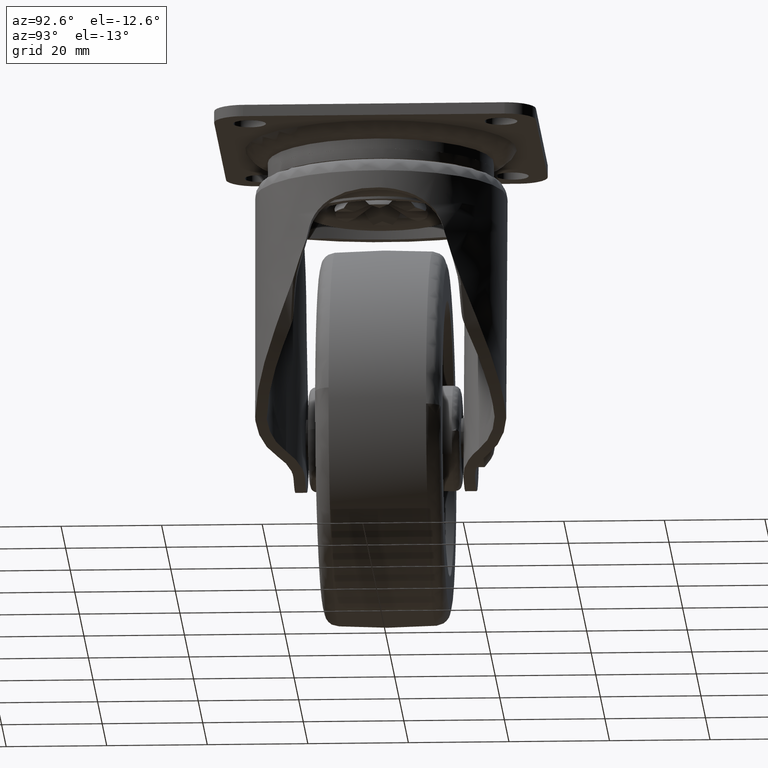
[diagram: clean part render]
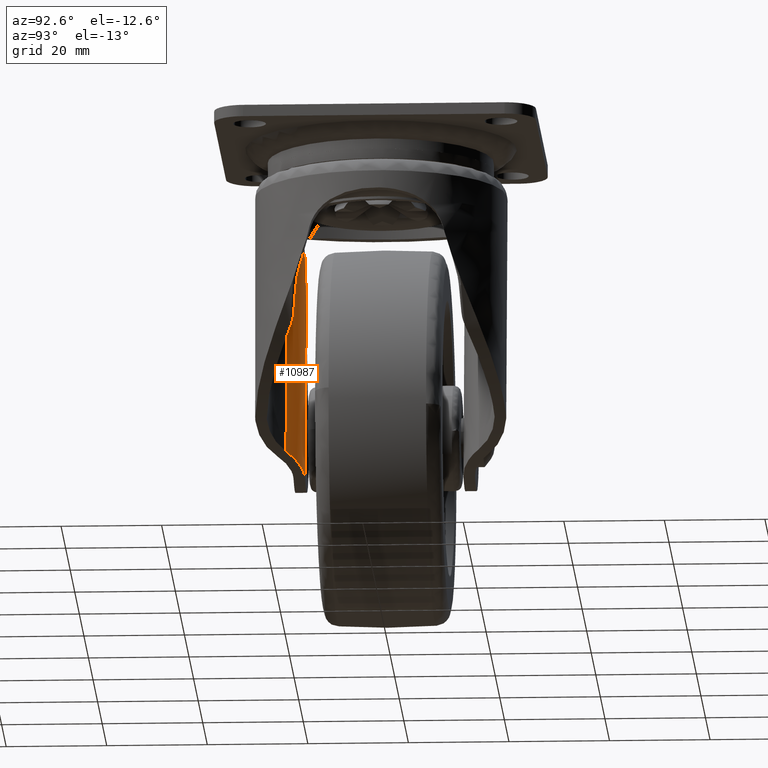
[diagram: same view with one face highlighted and labeled with its STEP entity id]
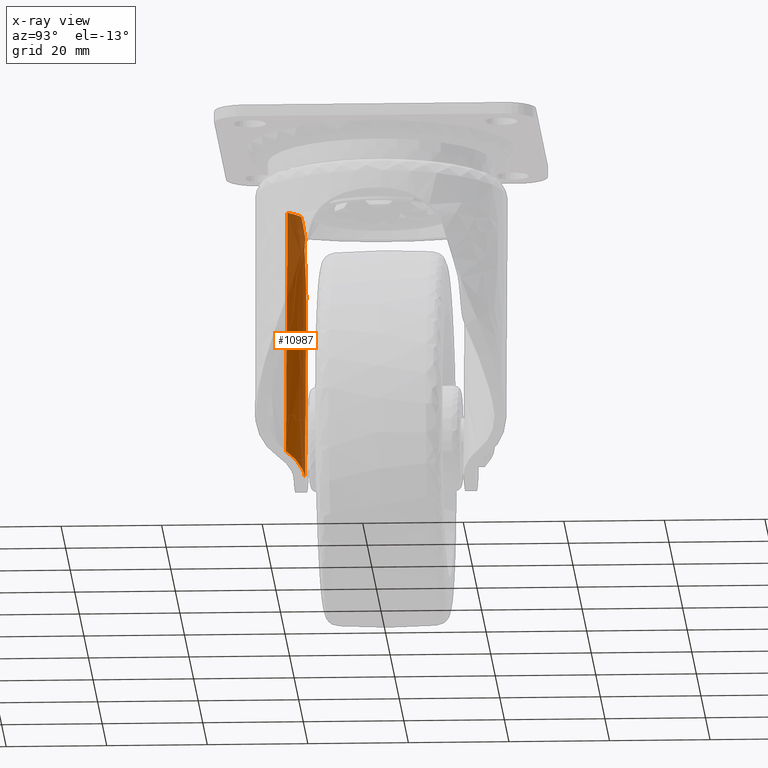
[diagram: x-ray of the same camera — body ghosted, the highlighted face saturated]
A machine part, auxiliary view. The second image highlights one B-rep face of the part: STEP entity #10987.
The next image is the same camera in x-ray: the body ghosted, the highlighted face saturated — about 29% of this face is hidden behind the body in this view.
In plain terms, the highlighted face is a freeform B-spline surface patch.
Its self-contained STEP definition (entity closure, byte-faithful):
#10234=CARTESIAN_POINT('',(-16.924622675787401,-16.595522280351901,-12.033550115330399));
#10235=VERTEX_POINT('',#10234);
#10331=CARTESIAN_POINT('',(-12.855656210281960,-19.169400000000000,-12.064581072916379));
#10332=VERTEX_POINT('',#10331);
#10431=CARTESIAN_POINT('',(-12.855656210281960,-19.169400000000000,-12.064581072916379));
#10432=CARTESIAN_POINT('',(-14.632630232781409,-17.483411421329087,-12.051000730294856));
#10433=CARTESIAN_POINT('',(-16.924622675787401,-16.595522280351901,-12.033550115330399));
#10441=(BOUNDED_CURVE()B_SPLINE_CURVE(2,(#10431,#10432,#10433),.UNSPECIFIED.,.F.,.U.)CURVE()GEOMETRIC_REPRESENTATION_ITEM()QUASI_UNIFORM_CURVE()RATIONAL_B_SPLINE_CURVE((1.0,0.980935623243889,1.0))REPRESENTATION_ITEM(''));
#10442=EDGE_CURVE('',#10332,#10235,#10441,.T.);
#10580=CARTESIAN_POINT('',(-19.032677829375750,-15.879800144074320,-16.229785388039360));
#10581=VERTEX_POINT('',#10580);
#10582=CARTESIAN_POINT('',(-16.924622675787401,-16.595522280351901,-12.033550115330399));
#10583=CARTESIAN_POINT('',(-17.244302123179079,-16.426117997790069,-12.913382914824091));
#10584=CARTESIAN_POINT('',(-17.622001915380022,-16.259600900256618,-13.772847426667610));
#10585=CARTESIAN_POINT('',(-18.054175157217720,-16.123030020025030,-14.609360531710230));
#10586=CARTESIAN_POINT('',(-18.226164541142399,-16.068679728801079,-14.942262617386399));
#10587=CARTESIAN_POINT('',(-18.408151418296448,-16.018690479689891,-15.270885156543359));
#10588=CARTESIAN_POINT('',(-18.603340714347059,-15.973339602512279,-15.592094173883790));
#10589=CARTESIAN_POINT('',(-18.736509089191991,-15.942398855587459,-15.811239811940050));
#10590=CARTESIAN_POINT('',(-18.884318496565250,-15.913019232685150,-16.021100957944860));
#10591=CARTESIAN_POINT('',(-19.032677829375750,-15.879800144074320,-16.229785388039360));
#10592=B_SPLINE_CURVE_WITH_KNOTS('',3,(#10582,#10583,#10584,#10585,#10586,#10587,#10588,#10589,#10590,#10591),.UNSPECIFIED.,.F.,.U.,(4,3,3,4),(0.0,2.853942297226528,3.989708536175916,4.764587831838798),.UNSPECIFIED.);
#10593=EDGE_CURVE('',#10235,#10581,#10592,.T.);
#10881=CARTESIAN_POINT('',(-14.402144481262480,-15.755540888033149,-67.161545205288434));
#10882=CARTESIAN_POINT('',(-21.915502752990481,-15.755540888033149,-11.318357936275611));
#10883=CARTESIAN_POINT('',(-9.023419854419748,-15.592583571326374,-66.437870803042060));
#10884=CARTESIAN_POINT('',(-16.536778126147759,-15.592583571326374,-10.594683534029226));
#10885=CARTESIAN_POINT('',(-5.279736904996786,-19.492849347566370,-65.934181228174594));
#10886=CARTESIAN_POINT('',(-12.793095176724794,-19.492849347566381,-10.090993959161748));
#10894=(BOUNDED_SURFACE()B_SPLINE_SURFACE(1,2,((#10881,#10883,#10885),(#10882,#10884,#10886)),.UNSPECIFIED.,.F.,.F.,.U.)B_SPLINE_SURFACE_WITH_KNOTS((2,2),(3,3),(0.0,56.346358505952999),(0.0,10.376213146571780),.UNSPECIFIED.)GEOMETRIC_REPRESENTATION_ITEM()RATIONAL_B_SPLINE_SURFACE(((1.0,0.910860041474665,0.991337854898139),(1.0,0.910860041474665,0.991337854898139)))REPRESENTATION_ITEM('')SURFACE());
#10895=CARTESIAN_POINT('',(-6.129514651340060,-19.169400000000000,-62.056764207222798));
#10896=VERTEX_POINT('',#10895);
#10897=CARTESIAN_POINT('',(-12.855656210281960,-19.169400000000000,-12.064581072916379));
#10898=CARTESIAN_POINT('',(-6.129514651340060,-19.169400000000000,-62.056764207222798));
#10899=QUASI_UNIFORM_CURVE('',1,(#10897,#10898),.UNSPECIFIED.,.F.,.U.);
#10900=EDGE_CURVE('',#10332,#10896,#10899,.T.);
#10901=ORIENTED_EDGE('',*,*,#10900,.T.);
#10902=CARTESIAN_POINT('',(-14.215069450385799,-15.750000000000000,-65.783512503692705));
#10903=VERTEX_POINT('',#10902);
#10904=CARTESIAN_POINT('',(-6.129514651340060,-19.169400000000000,-62.056764207222798));
#10905=CARTESIAN_POINT('',(-6.396468615847126,-18.896642829401362,-62.207172614099363));
#10906=CARTESIAN_POINT('',(-6.673509589977480,-18.640131254474820,-62.360319045764122));
#10907=CARTESIAN_POINT('',(-7.247379807762327,-18.158039080695929,-62.670701290910742));
#10908=CARTESIAN_POINT('',(-7.544211079662999,-17.932463635221790,-62.827940231010139));
#10909=CARTESIAN_POINT('',(-8.157856128619356,-17.511718263659489,-63.145415696835393));
#10910=CARTESIAN_POINT('',(-8.474669167788578,-17.316548653214770,-63.305654075763051));
#10911=CARTESIAN_POINT('',(-8.965435045861936,-17.046905135023270,-63.547600353897913));
#10912=CARTESIAN_POINT('',(-9.131619115928254,-16.960883075610869,-63.628515397891910));
#10913=CARTESIAN_POINT('',(-9.384900899630704,-16.837745982150992,-63.750217060452407));
#10914=CARTESIAN_POINT('',(-9.470102903330021,-16.797635457734881,-63.790889723720213));
#10915=CARTESIAN_POINT('',(-9.641307594185122,-16.719656307596988,-63.872070172820507));
#10916=CARTESIAN_POINT('',(-9.727247923408982,-16.681812204522132,-63.912549176864147));
#10917=CARTESIAN_POINT('',(-10.158636056795610,-16.498265423968821,-64.114364347032478));
#10918=CARTESIAN_POINT('',(-10.509134229923321,-16.369541510692279,-64.273957069699236));
#10919=CARTESIAN_POINT('',(-11.220966554744390,-16.147648060807569,-64.588883513363854));
#10920=CARTESIAN_POINT('',(-11.582300649519629,-16.054479986328179,-64.744218233500490));
#10921=CARTESIAN_POINT('',(-12.316095703512170,-15.904074228129270,-65.050171694668094));
#10922=CARTESIAN_POINT('',(-12.688555504812721,-15.846833046623050,-65.200791069413526));
#10923=CARTESIAN_POINT('',(-13.255993109849200,-15.789000451059330,-65.422882609946470));
#10924=CARTESIAN_POINT('',(-13.446898739133900,-15.774390817484090,-65.496386654412760));
#10925=CARTESIAN_POINT('',(-13.830178329431170,-15.754894369850120,-65.641487722402260));
#10926=CARTESIAN_POINT('',(-14.022354353751210,-15.750000000000000,-65.713014220475159));
#10927=CARTESIAN_POINT('',(-14.215069450385799,-15.750000000000000,-65.783512503692705));
#10928=B_SPLINE_CURVE_WITH_KNOTS('',3,(#10904,#10905,#10906,#10907,#10908,#10909,#10910,#10911,#10912,#10913,#10914,#10915,#10916,#10917,#10918,#10919,#10920,#10921,#10922,#10923,#10924,#10925,#10926,#10927),.UNSPECIFIED.,.F.,.U.,(4,2,2,2,2,2,2,2,2,2,2,4),(0.0,0.124999999999999,0.249999999999999,0.374999999999998,0.437499999999998,0.468749999999998,0.499999999999998,0.624999999999999,0.750000000000000,0.875000000000001,0.937500000000000,1.0),.UNSPECIFIED.);
#10929=EDGE_CURVE('',#10896,#10903,#10928,.T.);
#10930=ORIENTED_EDGE('',*,*,#10929,.T.);
#10931=CARTESIAN_POINT('',(-19.357460777699650,-15.750000000000000,-27.562584988187851));
#10932=VERTEX_POINT('',#10931);
#10933=CARTESIAN_POINT('',(-14.215069450385799,-15.750000000000000,-65.783512503692705));
#10934=CARTESIAN_POINT('',(-19.357460777699650,-15.750000000000000,-27.562584988187851));
#10935=QUASI_UNIFORM_CURVE('',1,(#10933,#10934),.UNSPECIFIED.,.F.,.U.);
#10936=EDGE_CURVE('',#10903,#10932,#10935,.T.);
#10937=ORIENTED_EDGE('',*,*,#10936,.T.);
#10938=CARTESIAN_POINT('',(-18.013641202889151,-16.007189389618201,-18.785764124618002));
#10939=VERTEX_POINT('',#10938);
#10940=CARTESIAN_POINT('',(-19.357460777699671,-15.750000000000000,-27.562584988187840));
#10941=CARTESIAN_POINT('',(-19.031074659586039,-15.749999999999901,-26.115223482253590));
#10942=CARTESIAN_POINT('',(-18.755476623053219,-15.782190650211550,-24.657352722601679));
#10943=CARTESIAN_POINT('',(-18.418526571384731,-15.854226429518970,-22.454582372364769));
#10944=CARTESIAN_POINT('',(-18.319371329799669,-15.882166561481821,-21.720294202373580));
#10945=CARTESIAN_POINT('',(-18.147100063738868,-15.942275909862969,-20.252630802171399));
#10946=CARTESIAN_POINT('',(-18.073957264315560,-15.974453185806199,-19.519079107951811));
#10947=CARTESIAN_POINT('',(-18.013641202889151,-16.007189389618201,-18.785764124618002));
#10948=B_SPLINE_CURVE_WITH_KNOTS('',3,(#10940,#10941,#10942,#10943,#10944,#10945,#10946,#10947),.UNSPECIFIED.,.F.,.U.,(4,2,2,4),(0.0,0.500000000000000,0.750000000000000,1.0),.UNSPECIFIED.);
#10949=EDGE_CURVE('',#10932,#10939,#10948,.T.);
#10950=ORIENTED_EDGE('',*,*,#10949,.T.);
#10951=CARTESIAN_POINT('',(-18.013641202889151,-16.007189389618201,-18.785764124618002));
#10952=CARTESIAN_POINT('',(-18.012098296917571,-16.007916849113169,-18.770950379490099));
#10953=CARTESIAN_POINT('',(-18.009782171647011,-16.009115617679111,-18.744972339316931));
#10954=CARTESIAN_POINT('',(-18.008473253921991,-16.010436173763200,-18.707730152516039));
#10955=CARTESIAN_POINT('',(-18.006384297344329,-16.012122956892679,-18.663073110508542));
#10956=CARTESIAN_POINT('',(-18.004529338368521,-16.013868368192750,-18.614669917325500));
#10957=CARTESIAN_POINT('',(-18.001052454699671,-16.016257370406429,-18.555170380623490));
#10958=CARTESIAN_POINT('',(-17.999271841348708,-16.017934920353710,-18.508603274184971));
#10959=CARTESIAN_POINT('',(-18.001299811849542,-16.018675905826822,-18.467617976731859));
#10960=CARTESIAN_POINT('',(-18.002514937500521,-16.019478134027111,-18.430370318925590));
#10961=CARTESIAN_POINT('',(-18.004748445426632,-16.020437968463270,-18.380094467431999));
#10962=CARTESIAN_POINT('',(-18.005525976023709,-16.022071085225939,-18.316727185646389));
#10963=CARTESIAN_POINT('',(-18.012069476356189,-16.023655312428701,-18.212511794068732));
#10964=CARTESIAN_POINT('',(-18.023910007386391,-16.023890015800120,-18.116253036003400));
#10965=CARTESIAN_POINT('',(-18.046227076008719,-16.023382153519979,-17.968807454956110));
#10966=CARTESIAN_POINT('',(-18.078093510223582,-16.021106200081238,-17.807787286965780));
#10967=CARTESIAN_POINT('',(-18.137782420331060,-16.015128291328971,-17.592109151874968));
#10968=CARTESIAN_POINT('',(-18.208131680311450,-16.003798716680571,-17.395695606547928));
#10969=CARTESIAN_POINT('',(-18.291668885605549,-15.994166997032121,-17.204485932593869));
#10970=CARTESIAN_POINT('',(-18.428724770432851,-15.973675904173570,-16.940121152710230));
#10971=CARTESIAN_POINT('',(-18.571337557251741,-15.952315379315520,-16.730574475805369));
#10972=CARTESIAN_POINT('',(-18.731319184327528,-15.928961706731000,-16.535304773717360));
#10973=CARTESIAN_POINT('',(-18.799821588697821,-15.918993744271271,-16.457032623977611));
#10974=CARTESIAN_POINT('',(-18.874704082165060,-15.908805980010211,-16.384923216932631));
#10975=CARTESIAN_POINT('',(-18.906745148829671,-15.904160023956621,-16.354047621653478));
#10976=CARTESIAN_POINT('',(-18.944129245050348,-15.900156826167141,-16.317871273818980));
#10977=CARTESIAN_POINT('',(-18.987015848336561,-15.895689271998521,-16.276535195814439));
#10978=CARTESIAN_POINT('',(-19.017580372224561,-15.885313880330729,-16.245292437804959));
#10979=CARTESIAN_POINT('',(-19.032677829375750,-15.879800144074320,-16.229785388039360));
#10980=B_SPLINE_CURVE_WITH_KNOTS('',3,(#10951,#10952,#10953,#10954,#10955,#10956,#10957,#10958,#10959,#10960,#10961,#10962,#10963,#10964,#10965,#10966,#10967,#10968,#10969,#10970,#10971,#10972,#10973,#10974,#10975,#10976,#10977,#10978,#10979),.UNSPECIFIED.,.F.,.U.,(4,1,1,1,1,1,1,1,1,1,1,1,1,1,1,1,1,1,1,1,1,1,1,1,1,1,4),(-0.000146947272738,0.044594045790655,0.078150748785907,0.111707451781157,0.178820857771669,0.223564696374456,0.290676545093524,0.318639628872135,0.346602712650746,0.402528880207957,0.469646938317649,0.536755901676307,0.715732033005239,0.760464890770676,0.984174971176230,1.207886253885861,1.431598544985593,1.610575134452753,1.834283784867223,2.326453762008517,2.371185069905604,2.594901485197667,2.639643874491528,2.684386263785389,2.729131668225722,2.796241130359622,2.863352571572921),.UNSPECIFIED.);
#10981=EDGE_CURVE('',#10939,#10581,#10980,.T.);
#10982=ORIENTED_EDGE('',*,*,#10981,.T.);
#10983=ORIENTED_EDGE('',*,*,#10593,.F.);
#10984=ORIENTED_EDGE('',*,*,#10442,.F.);
#10985=EDGE_LOOP('',(#10901,#10930,#10937,#10950,#10982,#10983,#10984));
#10986=FACE_OUTER_BOUND('',#10985,.T.);
#10987=ADVANCED_FACE('',(#10986),#10894,.T.);